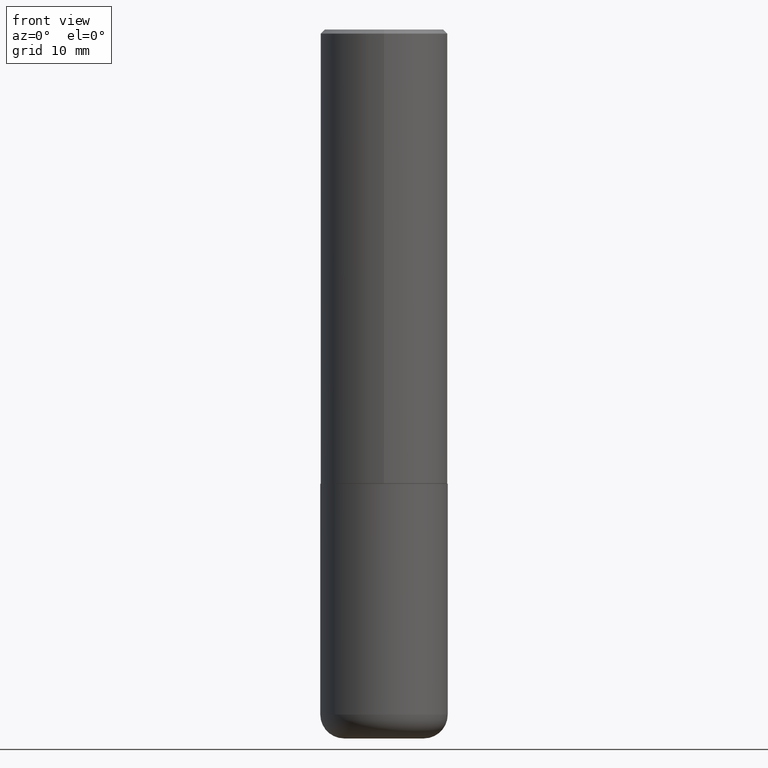
[diagram: clean part render]
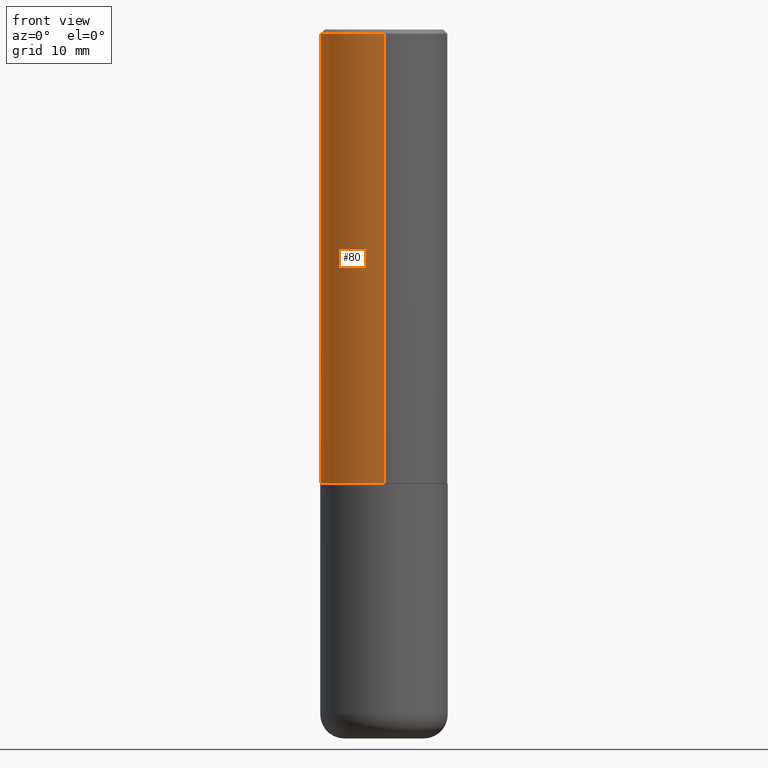
[diagram: same view with one face highlighted and labeled with its STEP entity id]
A machine part, front view. The second image highlights one B-rep face of the part: STEP entity #80.
In plain terms, the highlighted cylindrical surface (partial cylindrical patch) has radius 7.9997 mm, axis along (-0, 0, 1).
Its self-contained STEP definition (entity closure, byte-faithful):
#10 = ORIENTED_EDGE ( 'NONE', *, *, #206, .F. ) ;
#21 = LINE ( 'NONE', #196, #251 ) ;
#31 = VECTOR ( 'NONE', #101, 39.37007874015748143 ) ;
#42 = DIRECTION ( 'NONE',  ( -6.982962677686265922E-15, -1.000000000000000000, 3.469564049740290009E-15 ) ) ;
#58 = VERTEX_POINT ( 'NONE', #322 ) ;
#63 = CARTESIAN_POINT ( 'NONE',  ( 2.237854346276463595E-15, 0.3149499999999924027, -2.243100000000000538 ) ) ;
#80 = ADVANCED_FACE ( 'NONE', ( #407 ), #110, .T. ) ;
#95 = EDGE_CURVE ( 'NONE', #418, #211, #245, .T. ) ;
#98 = AXIS2_PLACEMENT_3D ( 'NONE', #372, #185, #42 ) ;
#101 = DIRECTION ( 'NONE',  ( -2.446102043983075148E-29, 3.490574506274840456E-15, 1.000000000000000000 ) ) ;
#108 = EDGE_LOOP ( 'NONE', ( #203, #268, #260, #10 ) ) ;
#110 = CYLINDRICAL_SURFACE ( 'NONE', #146, 0.3149500000000000632 ) ;
#132 = CARTESIAN_POINT ( 'NONE',  ( 4.892204087966167602E-31, -6.981149012549705614E-17, -0.02000000000000006981 ) ) ;
#146 = AXIS2_PLACEMENT_3D ( 'NONE', #291, #346, #349 ) ;
#185 = DIRECTION ( 'NONE',  ( -2.446102043983075148E-29, 3.490574506274840456E-15, 1.000000000000000000 ) ) ;
#191 = VERTEX_POINT ( 'NONE', #313 ) ;
#196 = CARTESIAN_POINT ( 'NONE',  ( -2.199284095337289871E-15, -0.3149500000000000632, 1.099356440751261260E-15 ) ) ;
#203 = ORIENTED_EDGE ( 'NONE', *, *, #389, .F. ) ;
#204 = CARTESIAN_POINT ( 'NONE',  ( 2.237854346276435590E-15, 0.3149500000000000632, -1.099356440751261260E-15 ) ) ;
#206 = EDGE_CURVE ( 'NONE', #191, #58, #293, .T. ) ;
#211 = VERTEX_POINT ( 'NONE', #225 ) ;
#224 = EDGE_CURVE ( 'NONE', #211, #58, #21, .T. ) ;
#225 = CARTESIAN_POINT ( 'NONE',  ( -2.199284095337236228E-15, -0.3149500000000081124, -2.243099999999998317 ) ) ;
#239 = AXIS2_PLACEMENT_3D ( 'NONE', #132, #412, #295 ) ;
#245 = CIRCLE ( 'NONE', #98, 0.3149500000000002853 ) ;
#251 = VECTOR ( 'NONE', #384, 39.37007874015748143 ) ;
#260 = ORIENTED_EDGE ( 'NONE', *, *, #224, .T. ) ;
#268 = ORIENTED_EDGE ( 'NONE', *, *, #95, .T. ) ;
#285 = LINE ( 'NONE', #204, #31 ) ;
#291 = CARTESIAN_POINT ( 'NONE',  ( 0.000000000000000000, 0.000000000000000000, 0.000000000000000000 ) ) ;
#293 = CIRCLE ( 'NONE', #239, 0.3149499999999998967 ) ;
#295 = DIRECTION ( 'NONE',  ( -6.982962677686264344E-15, -1.000000000000000000, 3.496670018878890283E-15 ) ) ;
#313 = CARTESIAN_POINT ( 'NONE',  ( 2.199284095337288688E-15, 0.3149499999999997857, -0.02000000000000116962 ) ) ;
#322 = CARTESIAN_POINT ( 'NONE',  ( -2.160713844398142179E-15, -0.3149499999999999522, -0.01999999999999896652 ) ) ;
#346 = DIRECTION ( 'NONE',  ( -2.446102043983075148E-29, 3.490574506274840456E-15, 1.000000000000000000 ) ) ;
#349 = DIRECTION ( 'NONE',  ( -6.982962677686265922E-15, -1.000000000000000000, 3.490574506274840456E-15 ) ) ;
#372 = CARTESIAN_POINT ( 'NONE',  ( 5.486851494858434265E-29, -7.829707675025093274E-15, -2.243099999999999206 ) ) ;
#384 = DIRECTION ( 'NONE',  ( -2.446102043983075148E-29, 3.490574506274840456E-15, 1.000000000000000000 ) ) ;
#389 = EDGE_CURVE ( 'NONE', #418, #191, #285, .T. ) ;
#407 = FACE_OUTER_BOUND ( 'NONE', #108, .T. ) ;
#412 = DIRECTION ( 'NONE',  ( -2.446102043983075148E-29, 3.490574506274840456E-15, 1.000000000000000000 ) ) ;
#418 = VERTEX_POINT ( 'NONE', #63 ) ;